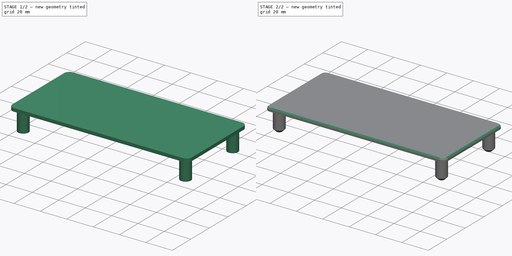
[diagram: build sequence overview — one tinted view per stage of 2, left to right]
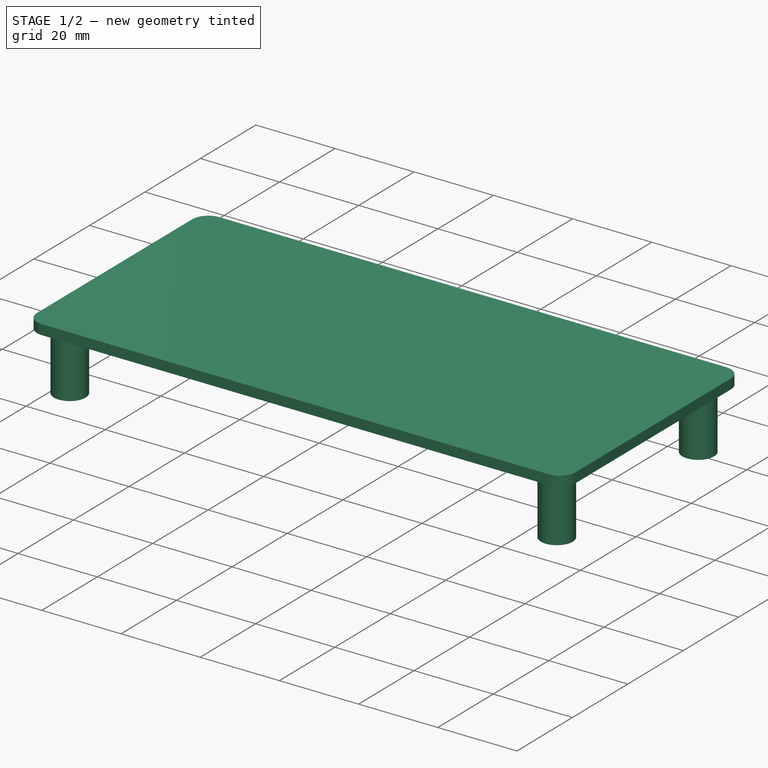
[diagram: stage 1 of 2 — iso view after this stage's code; geometry added in this stage tinted green]
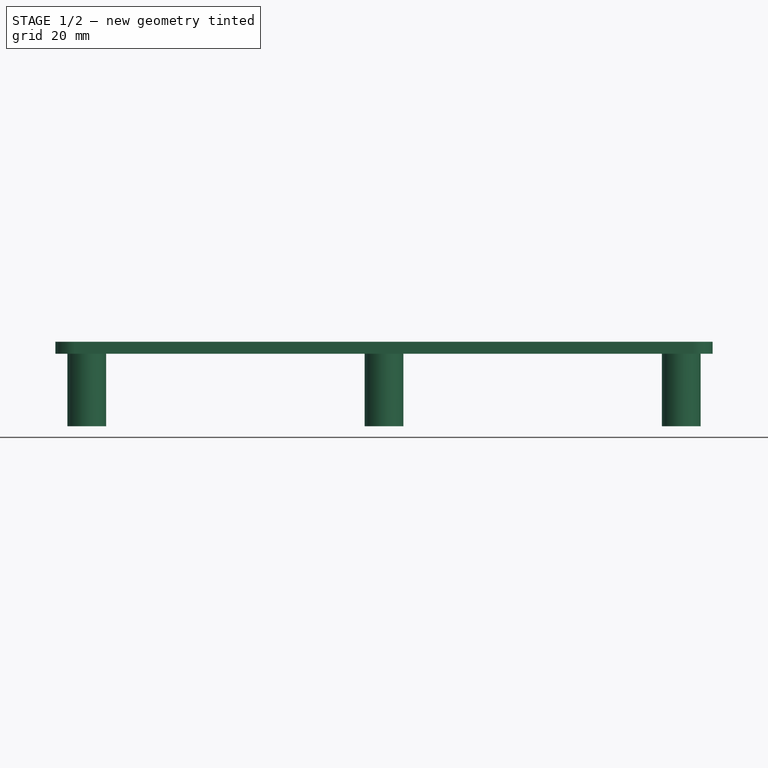
[diagram: stage 1 of 2 — front view after this stage's code; geometry added in this stage tinted green]
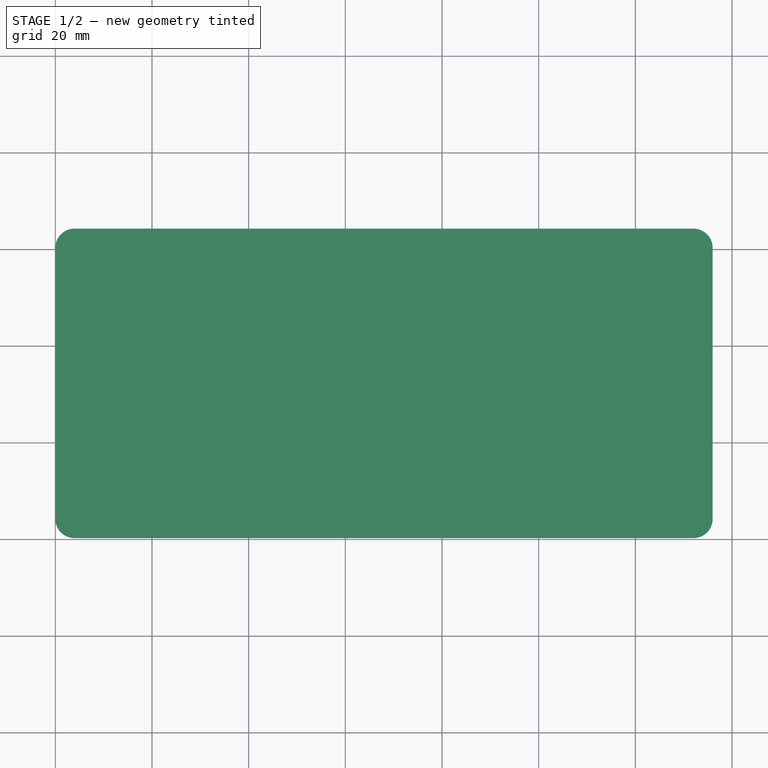
[diagram: stage 1 of 2 — top view after this stage's code; geometry added in this stage tinted green]
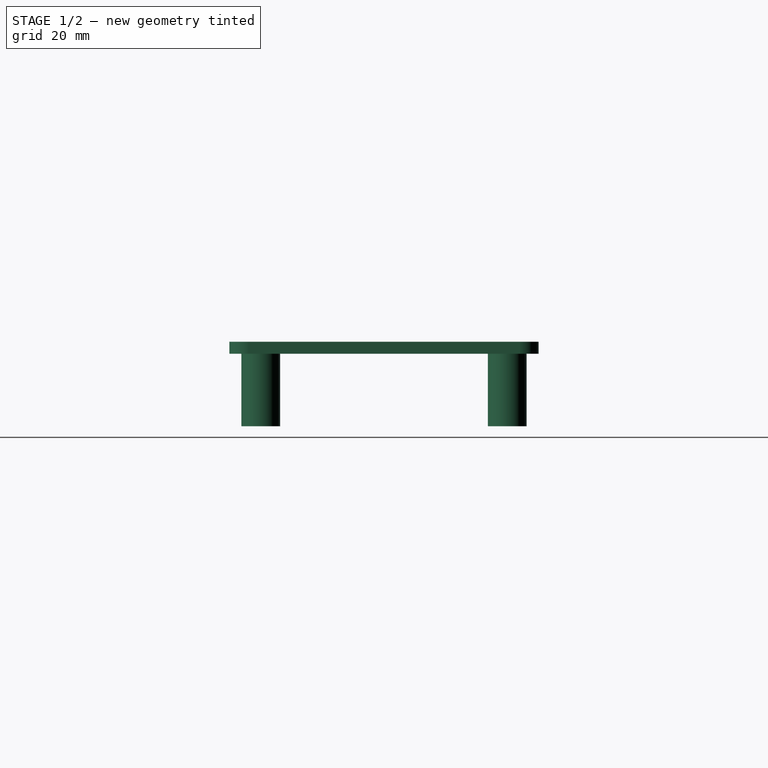
[diagram: stage 1 of 2 — right view after this stage's code; geometry added in this stage tinted green]
FCSTD DOCUMENT  (FreeCAD 0.21R33771 (Git))
Label: BruestungskanalDeckel
License: All rights reserved
LicenseURL: https://en.wikipedia.org/wiki/All_rights_reserved
objects: Sketcher::SketchObject×3, PartDesign::Pad×2, PartDesign::Chamfer×2, PartDesign::Body×1
note: 12 computed .brp shape members not serialized (recipe doc carries the construction recipe); baked Part::Feature solids carry a one-line shape summary decoded from their .brp

FEATURE [Sketcher::SketchObject] Sketch
  FullyConstrained = true
  MapMode = 5
  Support = -> [XY_Plane]
  sketch-geometry (8):
    g0: LineSegment StartX=4 StartY=0 StartZ=0 EndX=132 EndY=0 EndZ=0
    g1: LineSegment StartX=136 StartY=4 StartZ=0 EndX=136 EndY=60 EndZ=0
    g2: LineSegment StartX=132 StartY=64 StartZ=0 EndX=4 EndY=64 EndZ=0
    g3: LineSegment StartX=0 StartY=60 StartZ=0 EndX=0 EndY=4 EndZ=0
    g4: ArcOfCircle CenterX=132 CenterY=60 CenterZ=0 NormalX=0 NormalY=0 NormalZ=1 AngleXU=0 Radius=4 StartAngle=7e-16 EndAngle=1.5708
    g5: ArcOfCircle CenterX=132 CenterY=4 CenterZ=0 NormalX=0 NormalY=0 NormalZ=1 AngleXU=0 Radius=4 StartAngle=4.71239 EndAngle=6.28319
    g6: ArcOfCircle CenterX=4 CenterY=60 CenterZ=0 NormalX=0 NormalY=0 NormalZ=1 AngleXU=0 Radius=4 StartAngle=1.5708 EndAngle=3.14159
    g7: ArcOfCircle CenterX=4 CenterY=4 CenterZ=0 NormalX=0 NormalY=0 NormalZ=1 AngleXU=0 Radius=4 StartAngle=3.14159 EndAngle=4.71239
  constraints (20):
    c: Horizontal(g0)
    c: Horizontal(g2)
    c: Vertical(g1)
    c: Vertical(g3)
    c: Tangent(g2,g4) = -1.5708
    c: Tangent(g1,g4) = -1.5708
    c: Tangent(g0,g5) = -1.5708
    c: Tangent(g1,g5) = -1.5708
    c: Tangent(g2,g6) = -1.5708
    c: Tangent(g3,g6) = -1.5708
    c: Tangent(g3,g7) = -1.5708
    c: Tangent(g0,g7) = -1.5708
    c: DistanceY(g0,g2) = 64
    c: DistanceX(g3,g1) = 136
    c: PointOnObject(g0,g-1)
    c: Equal(g4,g6)
    c: Radius(g4) = 4
    c: Equal(g6,g7)
    c: Equal(g7,g5)
    c: PointOnObject(g3,g-2)
FEATURE [PartDesign::Pad] Pad
  Direction = (0,0,1)
  Length = 2.5
  Length2 = 10
  Profile = -> Sketch
  ReferenceAxis = -> Sketch [N_Axis]
  Type = 0
FEATURE [Sketcher::SketchObject] Sketch001
  FullyConstrained = true
  MapMode = 5
  Placement = pos=(0,0,0) rot=(1,0,0;1.5708rad)
  Support = -> [XZ_Plane]
FEATURE [Sketcher::SketchObject] Sketch002
  ExternalGeometry = -> [Pad]
  FullyConstrained = true
  MapMode = 5
  Support = -> [XY_Plane]
  sketch-geometry (15):
    g0: LineSegment StartX=2.5 StartY=61.5 StartZ=0 EndX=133.5 EndY=61.5 EndZ=0
    g1: LineSegment StartX=133.5 StartY=61.5 StartZ=0 EndX=133.5 EndY=2.5 EndZ=0
    g2: LineSegment StartX=133.5 StartY=2.5 StartZ=0 EndX=2.5 EndY=2.5 EndZ=0
    g3: LineSegment StartX=2.5 StartY=2.5 StartZ=0 EndX=2.5 EndY=61.5 EndZ=0
    g4: LineSegment StartX=2.5 StartY=2.5 StartZ=0 EndX=2.5 EndY=0 EndZ=0
    g5: LineSegment StartX=133.5 StartY=61.5 StartZ=0 EndX=133.5 EndY=64 EndZ=0
    g6: LineSegment StartX=133.5 StartY=61.5 StartZ=0 EndX=136 EndY=61.5 EndZ=0
    g7: LineSegment StartX=2.5 StartY=2.5 StartZ=0 EndX=0 EndY=2.5 EndZ=0
    g8: Circle CenterX=6.5 CenterY=6.5 CenterZ=0 NormalX=0 NormalY=0 NormalZ=1 AngleXU=0 Radius=4
    g9: Circle CenterX=129.5 CenterY=6.5 CenterZ=0 NormalX=0 NormalY=0 NormalZ=1 AngleXU=0 Radius=4
    g10: Circle CenterX=129.5 CenterY=57.5 CenterZ=0 NormalX=0 NormalY=0 NormalZ=1 AngleXU=0 Radius=4
    g11: Circle CenterX=6.5 CenterY=57.5 CenterZ=0 NormalX=0 NormalY=0 NormalZ=1 AngleXU=0 Radius=4
    g12: Circle CenterX=68 CenterY=57.5 CenterZ=0 NormalX=0 NormalY=0 NormalZ=1 AngleXU=0 Radius=4
    g13: LineSegment StartX=6.5 StartY=57.5 StartZ=0 EndX=68 EndY=57.5 EndZ=0
    g14: LineSegment StartX=68 StartY=57.5 StartZ=0 EndX=129.5 EndY=57.5 EndZ=0
  constraints (43):
    c: Coincident(g0,g1)
    c: Coincident(g1,g2)
    c: Coincident(g2,g3)
    c: Coincident(g3,g0)
    c: Horizontal(g0)
    c: Horizontal(g2)
    c: Vertical(g1)
    c: Vertical(g3)
    c: Coincident(g4,g2)
    c: Coincident(g5,g0)
    c: PointOnObject(g5,g-4)
    c: Coincident(g6,g0)
    c: PointOnObject(g6,g-3)
    c: Coincident(g7,g2)
    c: PointOnObject(g7,g-2)
    c: Vertical(g4)
    c: Vertical(g5)
    c: Horizontal(g7)
    c: Horizontal(g6)
    c: Equal(g7,g6)
    c: Equal(g5,g4)
    c: Equal(g7,g4)
    c: PointOnObject(g4,g-1)
    c: DistanceY(g4,g4) = 2.5
    c: Equal(g8,g11)
    c: Equal(g9,g8)
    c: Equal(g8,g10)
    c: Tangent(g8,g2)
    c: Tangent(g8,g3)
    c: Tangent(g11,g3)
    c: Tangent(g11,g0)
    c: Tangent(g10,g0)
    c: Tangent(g10,g1)
    c: Tangent(g9,g1)
    c: Tangent(g9,g2)
    c: Diameter(g8) = 8
    c: Equal(g12,g8)
    c: Tangent(g12,g0)
    c: Coincident(g13,g11)
    c: Coincident(g13,g12)
    c: Coincident(g13,g14)
    c: Coincident(g14,g10)
    c: Equal(g13,g14)
FEATURE [PartDesign::Pad] Pad001
  BaseFeature = -> Pad
  Direction = (0,0,1)
  Length = 15
  Length2 = 10
  Profile = -> Sketch002
  ReferenceAxis = -> Sketch002 [N_Axis]
  Reversed = true
  Type = 0
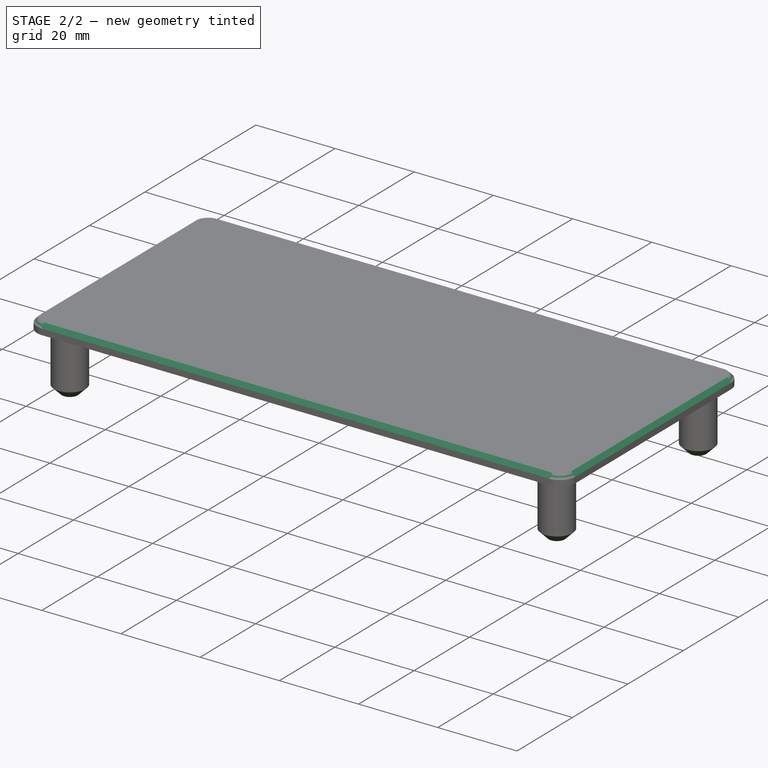
[diagram: stage 2 of 2 — iso view after this stage's code; geometry added in this stage tinted green]
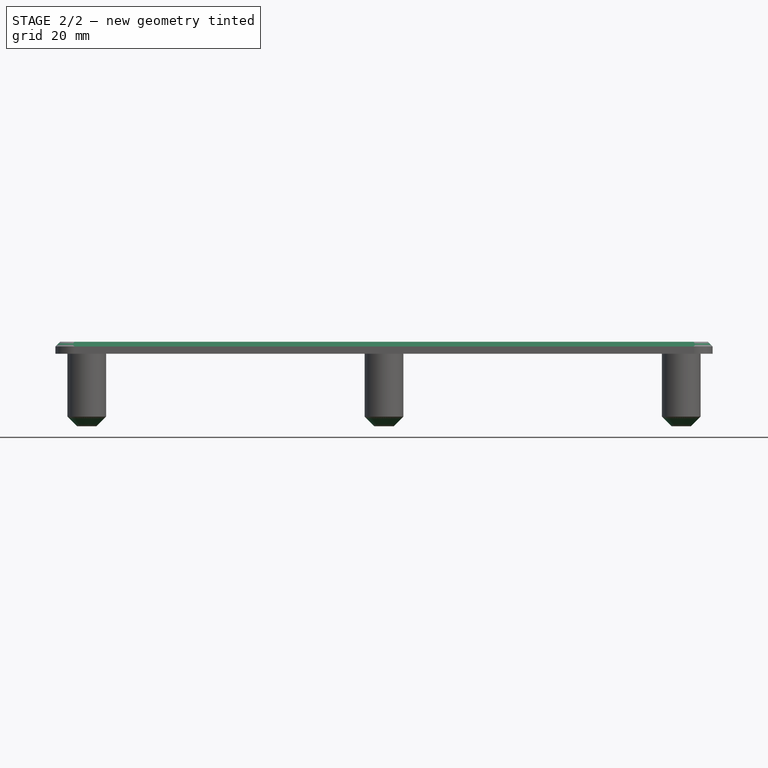
[diagram: stage 2 of 2 — front view after this stage's code; geometry added in this stage tinted green]
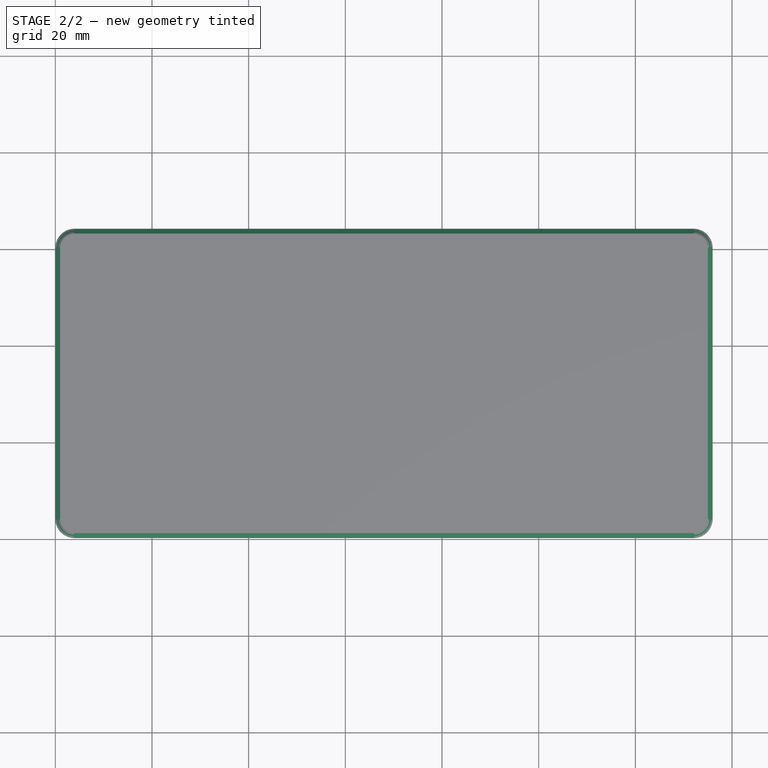
[diagram: stage 2 of 2 — top view after this stage's code; geometry added in this stage tinted green]
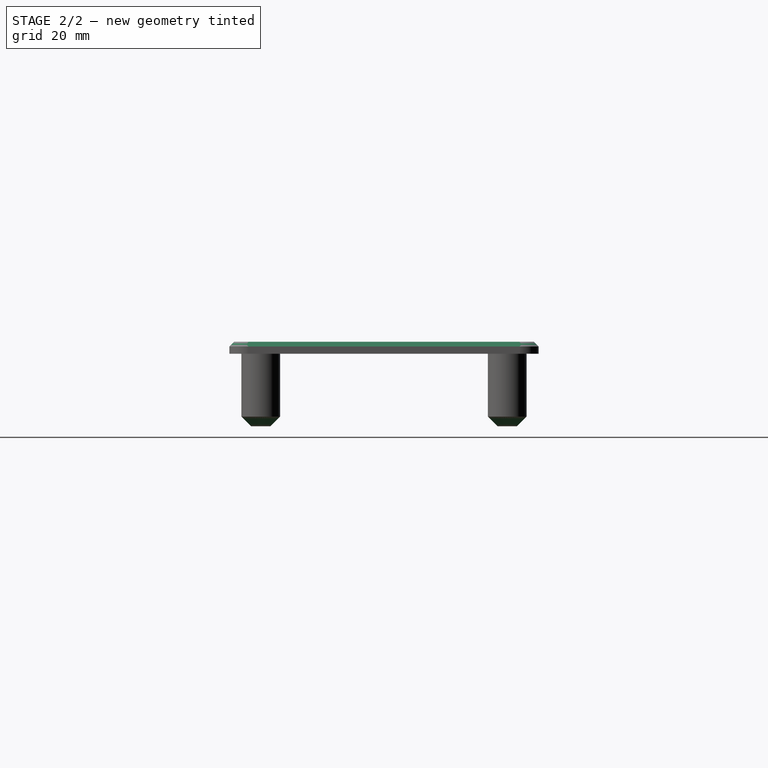
[diagram: stage 2 of 2 — right view after this stage's code; geometry added in this stage tinted green]
FEATURE [PartDesign::Chamfer] Chamfer
  Angle = 45
  Base = -> Pad001 [Face5]
  BaseFeature = -> Pad001
  ChamferType = 0
  FlipDirection = false
  Size = 1
  Size2 = 1
  SupportTransform = false
  UseAllEdges = false
FEATURE [PartDesign::Chamfer] Chamfer001
  Angle = 45
  Base = -> Chamfer [Edge43,Edge47,Edge49,Edge51,Edge45]
  BaseFeature = -> Chamfer
  ChamferType = 0
  FlipDirection = false
  Size = 2
  Size2 = 1
  SupportTransform = false
  UseAllEdges = false
FEATURE [PartDesign::Body] Body
  Group = -> [Sketch,Pad,Sketch001,Sketch002,Pad001,Chamfer,Chamfer001]
  Origin = -> Origin
  Tip = -> Chamfer001
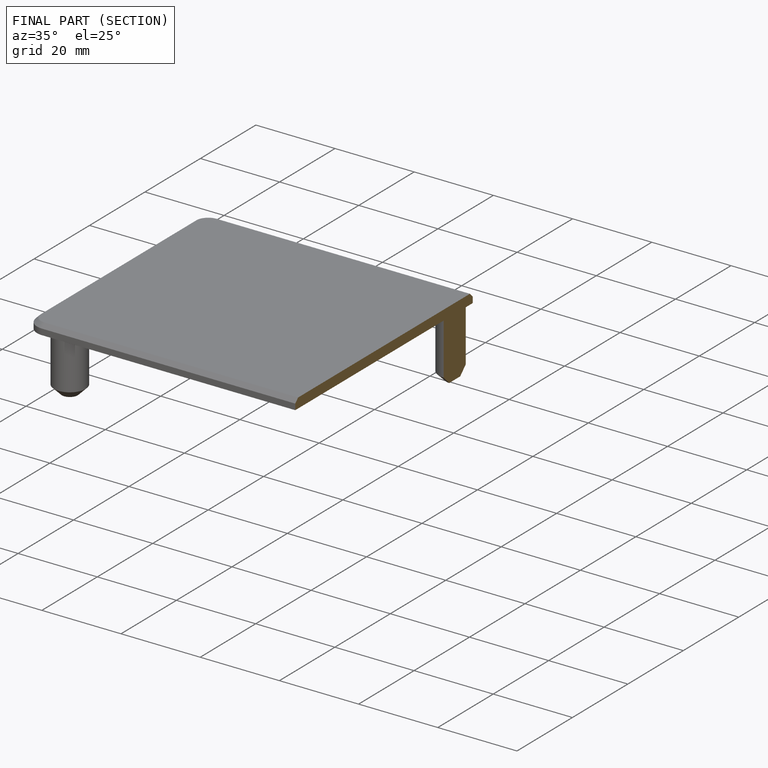
[diagram: finished part — half-section view (interior)]
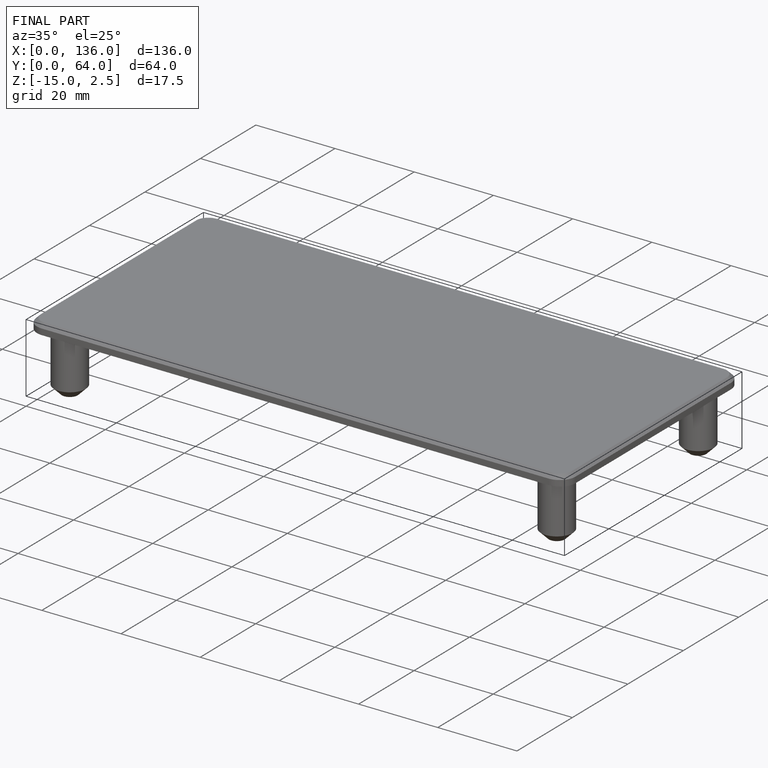
[diagram: finished part — iso view with bounding-box wireframe]
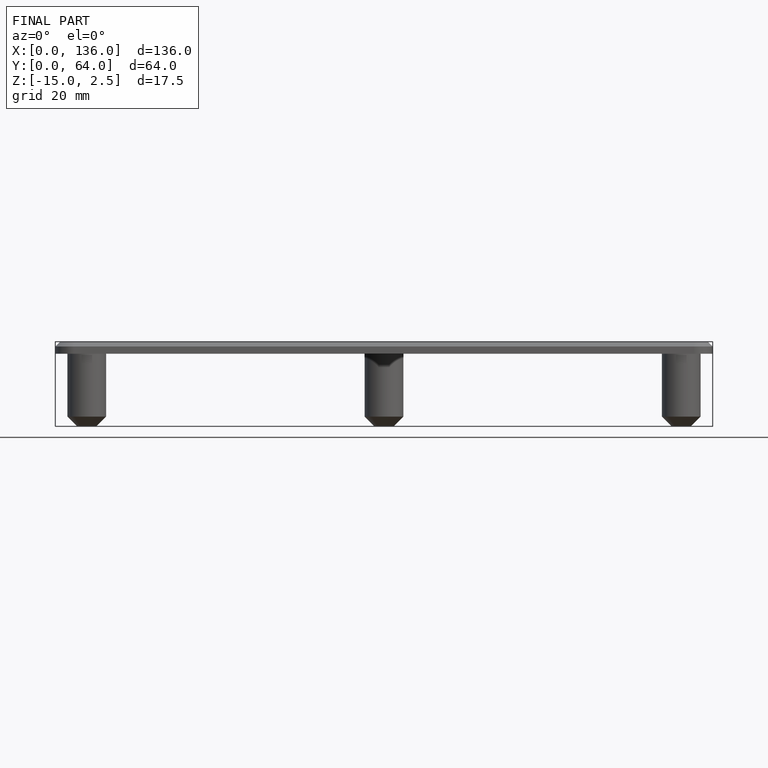
[diagram: finished part — front view with bounding-box wireframe]
